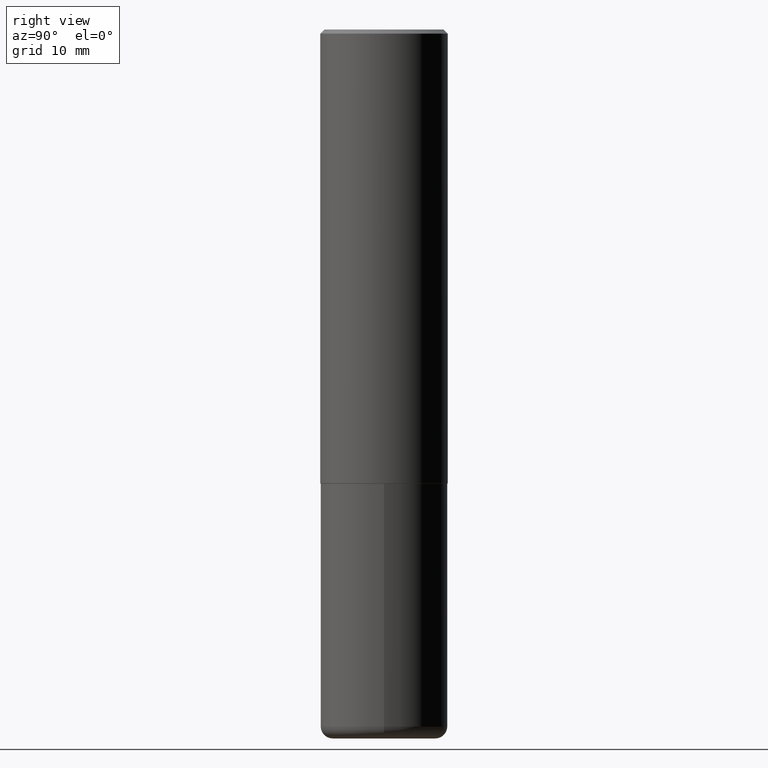
[diagram: clean part render]
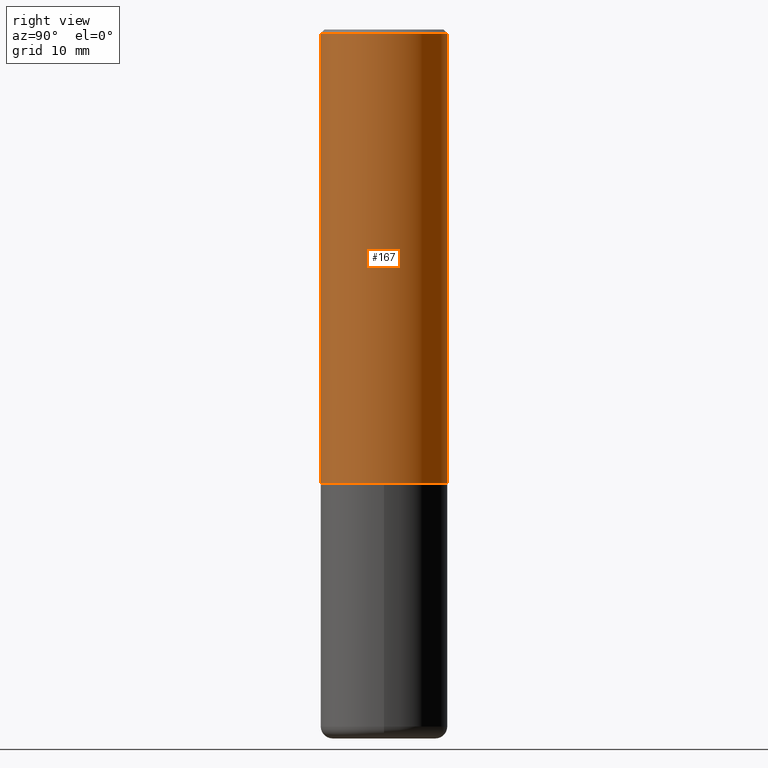
[diagram: same view with one face highlighted and labeled with its STEP entity id]
A machine part, right view. The second image highlights one B-rep face of the part: STEP entity #167.
In plain terms, the highlighted cylindrical surface (partial cylindrical patch) has radius 7.9997 mm, axis along (-0, 0, 1).
Its self-contained STEP definition (entity closure, byte-faithful):
#1 = CARTESIAN_POINT ( 'NONE',  ( 5.486851494858434265E-29, -7.829707675025093274E-15, -2.243099999999999206 ) ) ;
#2 = CARTESIAN_POINT ( 'NONE',  ( 2.199284095337288688E-15, 0.3149499999999997857, -0.02000000000000116962 ) ) ;
#17 = EDGE_LOOP ( 'NONE', ( #337, #22, #250, #112 ) ) ;
#22 = ORIENTED_EDGE ( 'NONE', *, *, #87, .T. ) ;
#30 = DIRECTION ( 'NONE',  ( -6.982962677686265922E-15, -1.000000000000000000, 3.469564049740290009E-15 ) ) ;
#31 = DIRECTION ( 'NONE',  ( -2.446102043983075148E-29, 3.490574506274840456E-15, 1.000000000000000000 ) ) ;
#47 = EDGE_CURVE ( 'NONE', #331, #264, #412, .T. ) ;
#59 = CARTESIAN_POINT ( 'NONE',  ( 0.000000000000000000, 0.000000000000000000, 0.000000000000000000 ) ) ;
#70 = LINE ( 'NONE', #191, #324 ) ;
#83 = DIRECTION ( 'NONE',  ( -2.446102043983075148E-29, 3.490574506274840456E-15, 1.000000000000000000 ) ) ;
#87 = EDGE_CURVE ( 'NONE', #264, #276, #121, .T. ) ;
#101 = AXIS2_PLACEMENT_3D ( 'NONE', #315, #31, #159 ) ;
#112 = ORIENTED_EDGE ( 'NONE', *, *, #233, .F. ) ;
#116 = VERTEX_POINT ( 'NONE', #314 ) ;
#121 = LINE ( 'NONE', #287, #354 ) ;
#157 = CIRCLE ( 'NONE', #101, 0.3149499999999998967 ) ;
#159 = DIRECTION ( 'NONE',  ( -6.982962677686264344E-15, -1.000000000000000000, 3.496670018878890283E-15 ) ) ;
#167 = ADVANCED_FACE ( 'NONE', ( #208 ), #302, .T. ) ;
#176 = AXIS2_PLACEMENT_3D ( 'NONE', #1, #226, #30 ) ;
#191 = CARTESIAN_POINT ( 'NONE',  ( -2.199284095337289871E-15, -0.3149500000000000632, 1.099356440751261260E-15 ) ) ;
#208 = FACE_OUTER_BOUND ( 'NONE', #17, .T. ) ;
#219 = DIRECTION ( 'NONE',  ( -2.446102043983075148E-29, 3.490574506274840456E-15, 1.000000000000000000 ) ) ;
#226 = DIRECTION ( 'NONE',  ( -2.446102043983075148E-29, 3.490574506274840456E-15, 1.000000000000000000 ) ) ;
#233 = EDGE_CURVE ( 'NONE', #331, #116, #70, .T. ) ;
#250 = ORIENTED_EDGE ( 'NONE', *, *, #377, .F. ) ;
#264 = VERTEX_POINT ( 'NONE', #323 ) ;
#276 = VERTEX_POINT ( 'NONE', #2 ) ;
#287 = CARTESIAN_POINT ( 'NONE',  ( 2.237854346276435590E-15, 0.3149500000000000632, -1.099356440751261260E-15 ) ) ;
#302 = CYLINDRICAL_SURFACE ( 'NONE', #355, 0.3149500000000000632 ) ;
#309 = DIRECTION ( 'NONE',  ( -6.982962677686265922E-15, -1.000000000000000000, 3.490574506274840456E-15 ) ) ;
#314 = CARTESIAN_POINT ( 'NONE',  ( -2.160713844398142179E-15, -0.3149499999999999522, -0.01999999999999896652 ) ) ;
#315 = CARTESIAN_POINT ( 'NONE',  ( 4.892204087966167602E-31, -6.981149012549705614E-17, -0.02000000000000006981 ) ) ;
#320 = DIRECTION ( 'NONE',  ( -2.446102043983075148E-29, 3.490574506274840456E-15, 1.000000000000000000 ) ) ;
#323 = CARTESIAN_POINT ( 'NONE',  ( 2.237854346276463595E-15, 0.3149499999999924027, -2.243100000000000538 ) ) ;
#324 = VECTOR ( 'NONE', #219, 39.37007874015748143 ) ;
#331 = VERTEX_POINT ( 'NONE', #346 ) ;
#337 = ORIENTED_EDGE ( 'NONE', *, *, #47, .T. ) ;
#346 = CARTESIAN_POINT ( 'NONE',  ( -2.199284095337236228E-15, -0.3149500000000081124, -2.243099999999998317 ) ) ;
#354 = VECTOR ( 'NONE', #320, 39.37007874015748143 ) ;
#355 = AXIS2_PLACEMENT_3D ( 'NONE', #59, #83, #309 ) ;
#377 = EDGE_CURVE ( 'NONE', #116, #276, #157, .T. ) ;
#412 = CIRCLE ( 'NONE', #176, 0.3149500000000002853 ) ;